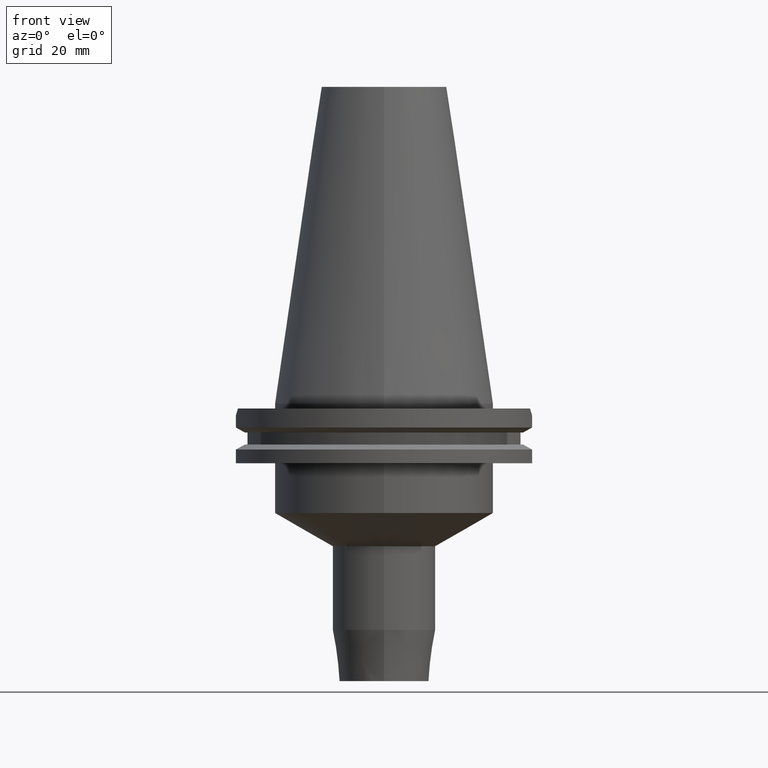
[diagram: clean part render]
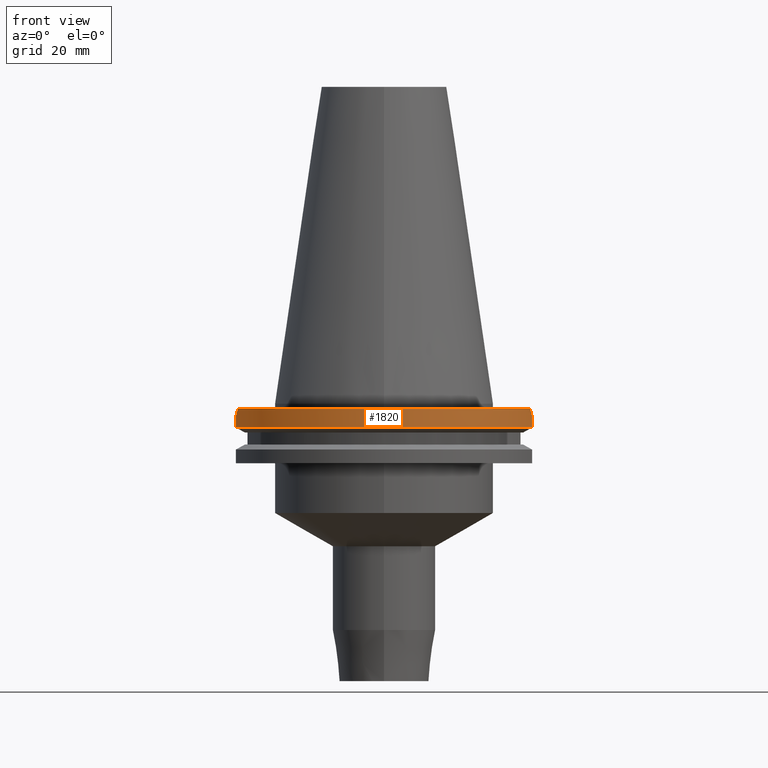
[diagram: same view with one face highlighted and labeled with its STEP entity id]
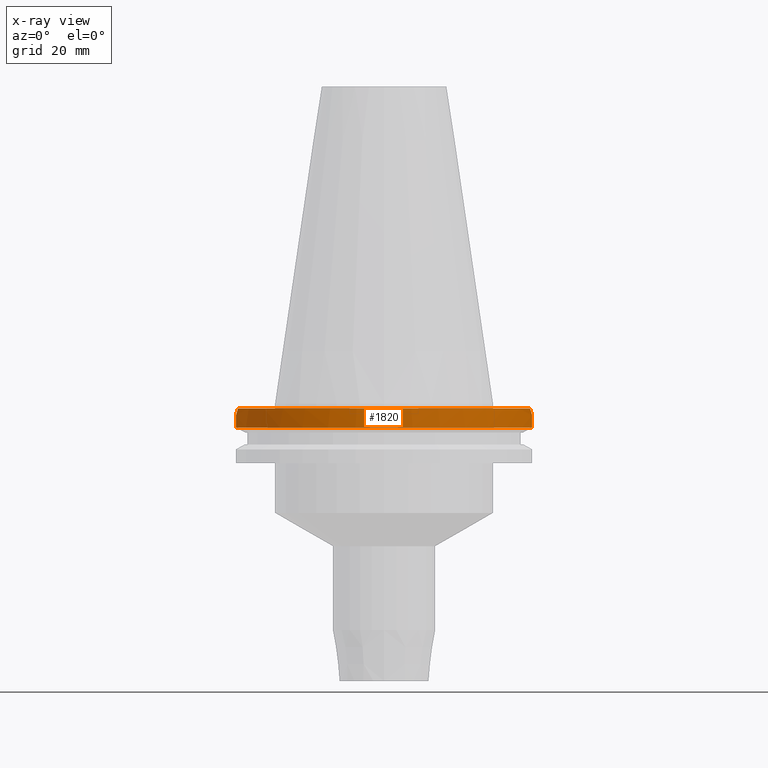
[diagram: x-ray of the same camera — body ghosted, the highlighted face saturated]
A machine part, front view. The second image highlights one B-rep face of the part: STEP entity #1820.
The next image is the same camera in x-ray: the body ghosted, the highlighted face saturated — about 0% of this face is hidden behind the body in this view.
In plain terms, the highlighted cylindrical surface (partial cylindrical patch) has radius 49.2125 mm, axis along (0, 0, -1).
Its self-contained STEP definition (entity closure, byte-faithful):
#108=CARTESIAN_POINT('',(0.E0,2.585535554700E-14,-1.5E0));
#109=DIRECTION('',(0.E0,0.E0,-1.E0));
#110=DIRECTION('',(9.514024724200E-1,-3.079502159004E-1,0.E0));
#111=AXIS2_PLACEMENT_3D('',#108,#109,#110);
#116=CARTESIAN_POINT('',(0.E0,2.585535554700E-14,-1.5E0));
#117=DIRECTION('',(0.E0,0.E0,-1.E0));
#118=DIRECTION('',(0.E0,-1.E0,0.E0));
#119=AXIS2_PLACEMENT_3D('',#116,#117,#118);
#575=CARTESIAN_POINT('',(4.682089417397E1,-1.5155E1,-1.5E0));
#576=CARTESIAN_POINT('',(4.705739607797E1,-1.442433483212E1,-2.230665167880E0));
#577=CARTESIAN_POINT('',(4.727588310257E1,-1.369098379593E1,-2.964016204073E0));
#578=CARTESIAN_POINT('',(4.747671146204E1,-1.2955E1,-3.699999999999E0));
#583=DIRECTION('',(2.622645846769E-13,-3.323839354412E-14,-1.E0));
#584=VECTOR('',#583,3.901333230925E0);
#585=CARTESIAN_POINT('',(4.747671146204E1,-1.2955E1,-3.7E0));
#586=LINE('',#585,#584);
#590=DIRECTION('',(2.640858665149E-13,3.369371400363E-14,1.E0));
#591=VECTOR('',#590,3.901333230925E0);
#592=CARTESIAN_POINT('',(-4.747671146204E1,-1.2955E1,-7.601333230925E0));
#593=LINE('',#592,#591);
#597=CARTESIAN_POINT('',(-4.747671146204E1,-1.2955E1,-3.699999999999E0));
#598=CARTESIAN_POINT('',(-4.727588310257E1,-1.369098379593E1,
-2.964016204073E0));
#599=CARTESIAN_POINT('',(-4.705739607797E1,-1.442433483212E1,
-2.230665167880E0));
#600=CARTESIAN_POINT('',(-4.682089417397E1,-1.5155E1,-1.5E0));
#654=CARTESIAN_POINT('',(4.747671146204E1,-1.2955E1,-7.601333230925E0));
#674=CARTESIAN_POINT('',(0.E0,1.121722380079E-14,-7.601333230926E0));
#675=DIRECTION('',(0.E0,0.E0,1.E0));
#676=DIRECTION('',(-9.647287063661E-1,-2.632461264923E-1,0.E0));
#677=AXIS2_PLACEMENT_3D('',#674,#675,#676);
#682=CARTESIAN_POINT('',(0.E0,1.121722380079E-14,-7.601333230926E0));
#683=DIRECTION('',(0.E0,0.E0,1.E0));
#684=DIRECTION('',(0.E0,-1.E0,0.E0));
#685=AXIS2_PLACEMENT_3D('',#682,#683,#684);
#1317=VERTEX_POINT('',#654);
#1318=CARTESIAN_POINT('',(4.747671146204E1,-1.2955E1,-3.7E0));
#1319=VERTEX_POINT('',#1318);
#1332=CARTESIAN_POINT('',(-4.747671146204E1,-1.2955E1,-3.7E0));
#1333=VERTEX_POINT('',#1332);
#1334=CARTESIAN_POINT('',(-4.747671146204E1,-1.2955E1,-7.601333230925E0));
#1335=VERTEX_POINT('',#1334);
#1386=CARTESIAN_POINT('',(0.E0,-4.92125E1,-7.601333230926E0));
#1387=VERTEX_POINT('',#1386);
#1391=VERTEX_POINT('',#575);
#1392=VERTEX_POINT('',#600);
#1393=CARTESIAN_POINT('',(0.E0,-4.92125E1,-1.5E0));
#1394=VERTEX_POINT('',#1393);
#1800=CARTESIAN_POINT('',(0.E0,2.585535554700E-14,1.11125E2));
#1801=DIRECTION('',(0.E0,0.E0,-1.E0));
#1802=DIRECTION('',(0.E0,-1.E0,0.E0));
#1803=AXIS2_PLACEMENT_3D('',#1800,#1801,#1802);
#1804=CYLINDRICAL_SURFACE('',#1803,4.92125E1);
#1806=ORIENTED_EDGE('',*,*,#1805,.T.);
#1808=ORIENTED_EDGE('',*,*,#1807,.T.);
#1810=ORIENTED_EDGE('',*,*,#1809,.F.);
#1812=ORIENTED_EDGE('',*,*,#1811,.F.);
#1814=ORIENTED_EDGE('',*,*,#1813,.T.);
#1815=ORIENTED_EDGE('',*,*,#1792,.T.);
#1816=ORIENTED_EDGE('',*,*,#1499,.F.);
#1817=ORIENTED_EDGE('',*,*,#1497,.F.);
#1818=EDGE_LOOP('',(#1806,#1808,#1810,#1812,#1814,#1815,#1816,#1817));
#1819=FACE_OUTER_BOUND('',#1818,.F.);
#112=CIRCLE('',#111,4.92125E1);
#120=CIRCLE('',#119,4.92125E1);
#579=B_SPLINE_CURVE_WITH_KNOTS('',3,(#575,#576,#577,#578),.UNSPECIFIED.,.F.,.F.,
(4,4),(0.E0,1.E0),.UNSPECIFIED.);
#601=B_SPLINE_CURVE_WITH_KNOTS('',3,(#597,#598,#599,#600),.UNSPECIFIED.,.F.,.F.,
(4,4),(0.E0,1.E0),.UNSPECIFIED.);
#678=CIRCLE('',#677,4.92125E1);
#686=CIRCLE('',#685,4.92125E1);
#1497=EDGE_CURVE('',#1391,#1394,#112,.T.);
#1499=EDGE_CURVE('',#1394,#1392,#120,.T.);
#1792=EDGE_CURVE('',#1333,#1392,#601,.T.);
#1805=EDGE_CURVE('',#1391,#1319,#579,.T.);
#1807=EDGE_CURVE('',#1319,#1317,#586,.T.);
#1809=EDGE_CURVE('',#1387,#1317,#686,.T.);
#1811=EDGE_CURVE('',#1335,#1387,#678,.T.);
#1813=EDGE_CURVE('',#1335,#1333,#593,.T.);
#1820=ADVANCED_FACE('',(#1819),#1804,.T.);